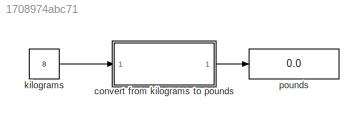
MODEL slx_1708974abc71
KIND model
CONFIG AbsTol = auto
CONFIG EnableMultiTasking = off
CONFIG FixedStep = auto
CONFIG MaxStep = auto
CONFIG MinStep = auto
CONFIG RelTol = 1e-3
CONFIG SampleTimeConstraint = Unconstrained
CONFIG SolverName = VariableStepAuto
CONFIG StartTime = 0.0
CONFIG StopTime = 10.0
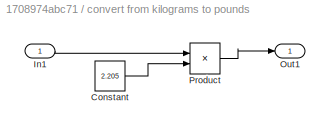
BLOCK [SubSystem] convert from kilograms to pounds
  Ports = [1, 1]
  RequestExecContextInheritance = off
BLOCK [Constant] convert from kilograms to pounds/Constant
  Value = 2.205
BLOCK [Inport] convert from kilograms to pounds/In1
BLOCK [Outport] convert from kilograms to pounds/Out1
BLOCK [Product] convert from kilograms to pounds/Product
  Ports = [2, 1]
BLOCK [Constant] kilograms
  Value = 8
BLOCK [Display] pounds
  Decimation = 1
  Ports = [1]
LINE convert from kilograms to pounds/Constant:1 -> convert from kilograms to pounds/Product:2
LINE convert from kilograms to pounds/In1:1 -> convert from kilograms to pounds/Product:1
LINE convert from kilograms to pounds/Product:1 -> convert from kilograms to pounds/Out1:1
LINE convert from kilograms to pounds:1 -> pounds:1
LINE kilograms:1 -> convert from kilograms to pounds:1
